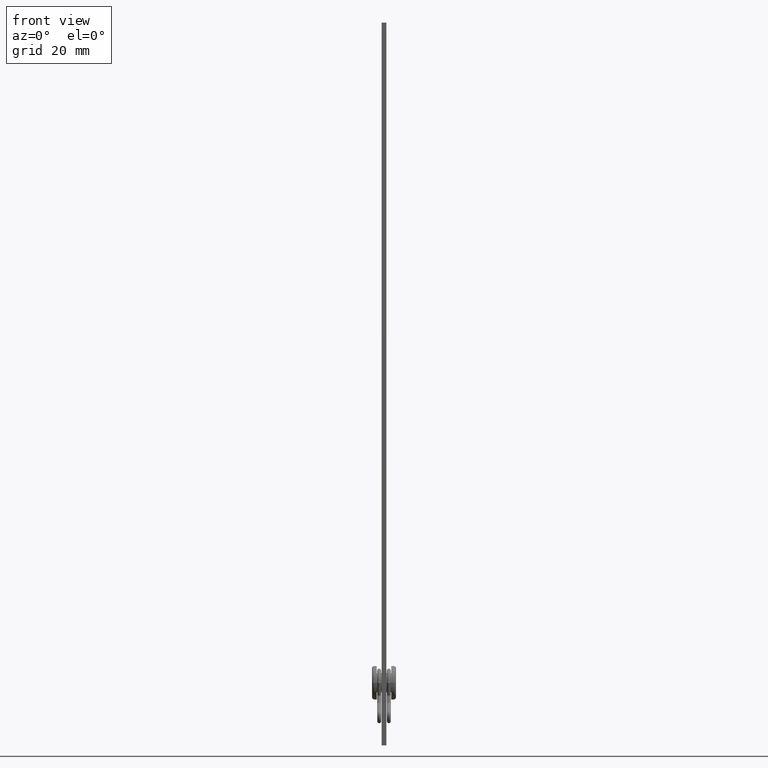
[diagram: clean part render]
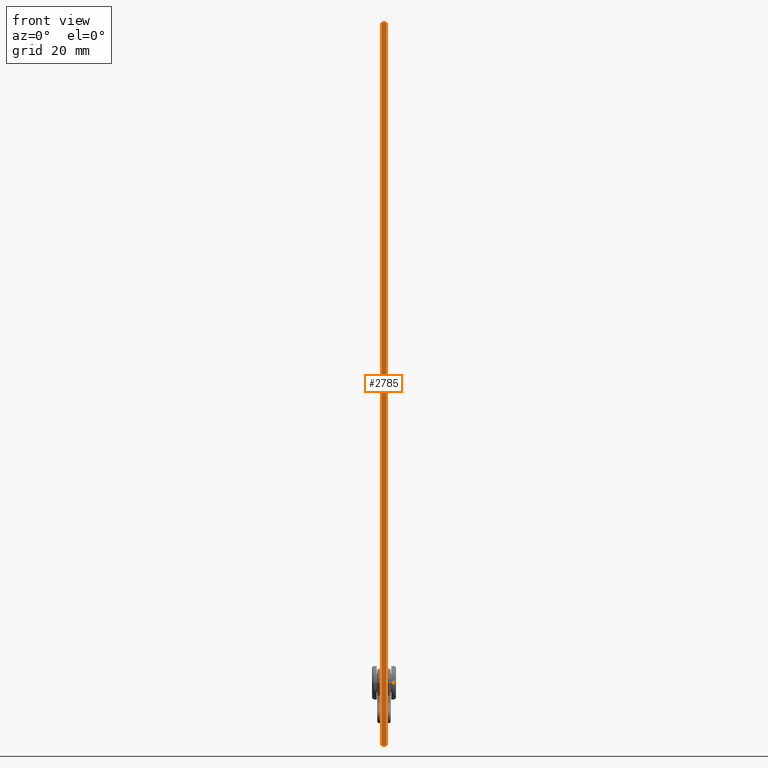
[diagram: same view with one face highlighted and labeled with its STEP entity id]
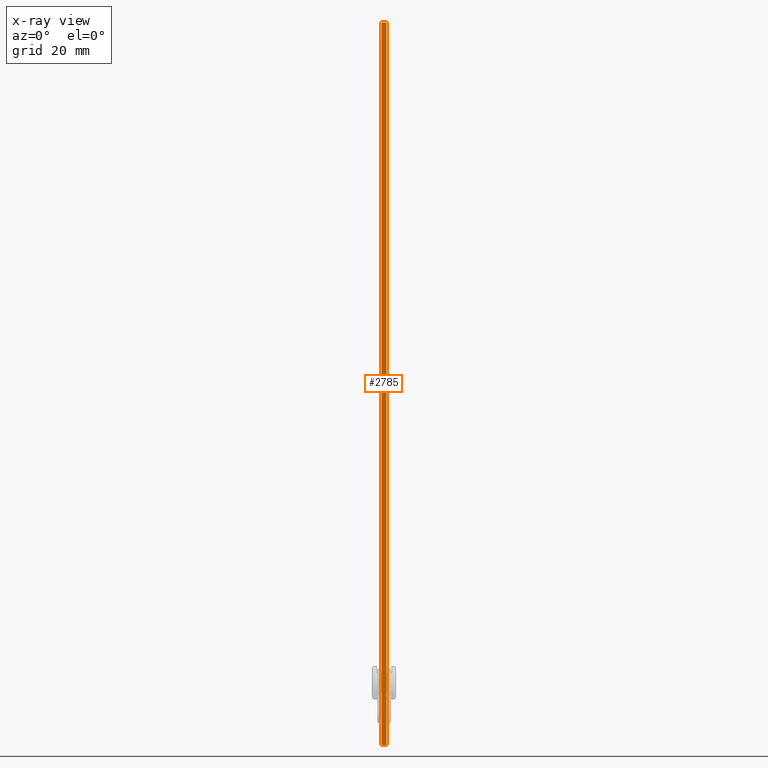
[diagram: x-ray of the same camera — body ghosted, the highlighted face saturated]
A machine part, front view. The second image highlights one B-rep face of the part: STEP entity #2785.
The next image is the same camera in x-ray: the body ghosted, the highlighted face saturated — about 0% of this face is hidden behind the body in this view.
In plain terms, the highlighted planar face has unit normal (0, 1, 0).
Its self-contained STEP definition (entity closure, byte-faithful):
#10 = VERTEX_POINT ( 'NONE', #123 ) ;
#123 = CARTESIAN_POINT ( 'NONE',  ( -0.4999999999999987232, -10.00000000000000000, 150.0000000000000000 ) ) ;
#145 = PLANE ( 'NONE',  #2645 ) ;
#442 = VECTOR ( 'NONE', #2723, 1000.000000000000000 ) ;
#526 = VERTEX_POINT ( 'NONE', #2019 ) ;
#533 = CARTESIAN_POINT ( 'NONE',  ( 0.5000000000000011102, -10.00000000000000000, 150.0000000000000000 ) ) ;
#561 = FACE_OUTER_BOUND ( 'NONE', #2383, .T. ) ;
#579 = ORIENTED_EDGE ( 'NONE', *, *, #2286, .F. ) ;
#626 = DIRECTION ( 'NONE',  ( 1.000000000000000000, 0.000000000000000000, 0.000000000000000000 ) ) ;
#634 = LINE ( 'NONE', #1617, #2591 ) ;
#669 = EDGE_CURVE ( 'NONE', #526, #1507, #634, .T. ) ;
#843 = CARTESIAN_POINT ( 'NONE',  ( -0.4999999999999987232, -10.00000000000000000, 150.0000000000000000 ) ) ;
#1052 = DIRECTION ( 'NONE',  ( 1.000000000000000000, 0.000000000000000000, 0.000000000000000000 ) ) ;
#1117 = DIRECTION ( 'NONE',  ( 0.000000000000000000, 1.000000000000000000, 0.000000000000000000 ) ) ;
#1126 = EDGE_CURVE ( 'NONE', #10, #526, #2743, .T. ) ;
#1161 = CARTESIAN_POINT ( 'NONE',  ( 0.5000000000000011102, -10.00000000000000000, 150.0000000000000000 ) ) ;
#1176 = VERTEX_POINT ( 'NONE', #533 ) ;
#1178 = VECTOR ( 'NONE', #1645, 1000.000000000000000 ) ;
#1246 = CARTESIAN_POINT ( 'NONE',  ( 0.5000000000000011102, -10.00000000000000000, 0.000000000000000000 ) ) ;
#1368 = LINE ( 'NONE', #1161, #1178 ) ;
#1507 = VERTEX_POINT ( 'NONE', #1246 ) ;
#1617 = CARTESIAN_POINT ( 'NONE',  ( -0.4999999999999987232, -10.00000000000000000, 0.000000000000000000 ) ) ;
#1622 = LINE ( 'NONE', #1862, #1972 ) ;
#1645 = DIRECTION ( 'NONE',  ( -0.000000000000000000, -0.000000000000000000, -1.000000000000000000 ) ) ;
#1862 = CARTESIAN_POINT ( 'NONE',  ( -0.4999999999999987232, -10.00000000000000000, 150.0000000000000000 ) ) ;
#1897 = ORIENTED_EDGE ( 'NONE', *, *, #669, .T. ) ;
#1972 = VECTOR ( 'NONE', #626, 1000.000000000000000 ) ;
#2019 = CARTESIAN_POINT ( 'NONE',  ( -0.4999999999999987232, -10.00000000000000000, 0.000000000000000000 ) ) ;
#2088 = DIRECTION ( 'NONE',  ( 0.000000000000000000, -0.000000000000000000, 1.000000000000000000 ) ) ;
#2251 = CARTESIAN_POINT ( 'NONE',  ( -0.4999999999999987232, -10.00000000000000000, 150.0000000000000000 ) ) ;
#2286 = EDGE_CURVE ( 'NONE', #10, #1176, #1622, .T. ) ;
#2323 = EDGE_CURVE ( 'NONE', #1176, #1507, #1368, .T. ) ;
#2383 = EDGE_LOOP ( 'NONE', ( #1897, #2725, #579, #2439 ) ) ;
#2439 = ORIENTED_EDGE ( 'NONE', *, *, #1126, .T. ) ;
#2591 = VECTOR ( 'NONE', #1052, 1000.000000000000000 ) ;
#2645 = AXIS2_PLACEMENT_3D ( 'NONE', #843, #1117, #2088 ) ;
#2723 = DIRECTION ( 'NONE',  ( -0.000000000000000000, -0.000000000000000000, -1.000000000000000000 ) ) ;
#2725 = ORIENTED_EDGE ( 'NONE', *, *, #2323, .F. ) ;
#2743 = LINE ( 'NONE', #2251, #442 ) ;
#2785 = ADVANCED_FACE ( 'NONE', ( #561 ), #145, .F. ) ;